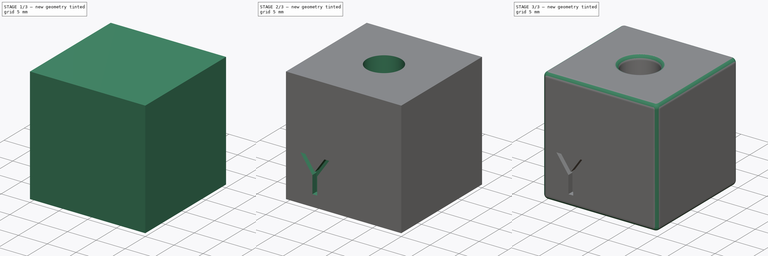
[diagram: build sequence overview — one tinted view per stage of 3, left to right]
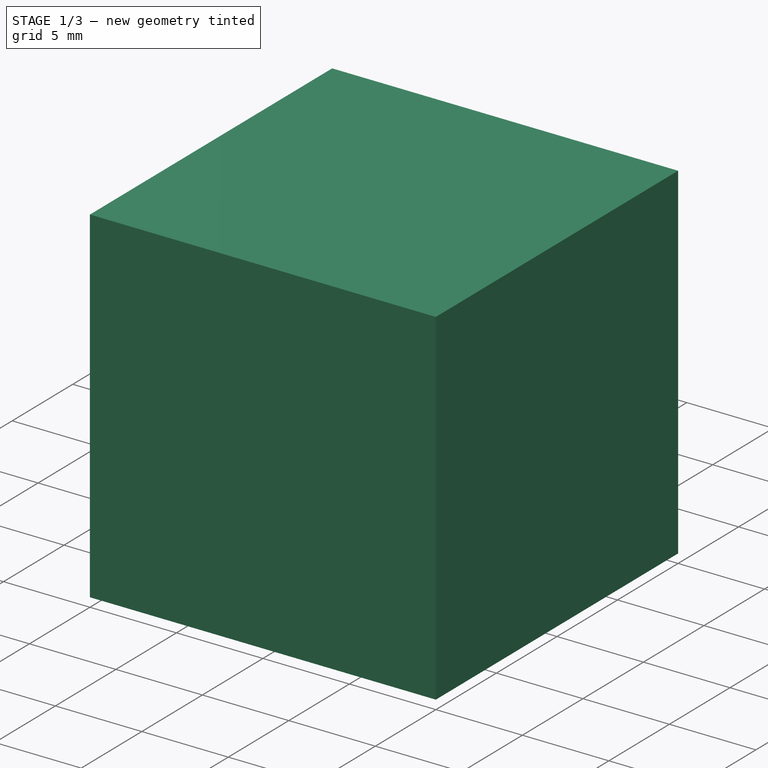
[diagram: stage 1 of 3 — iso view after this stage's code; geometry added in this stage tinted green]
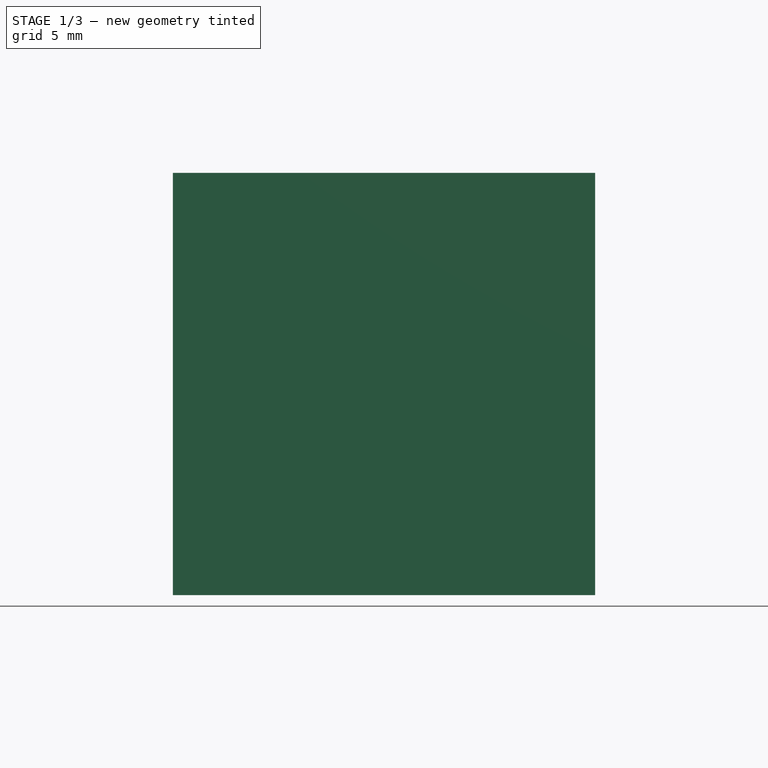
[diagram: stage 1 of 3 — front view after this stage's code; geometry added in this stage tinted green]
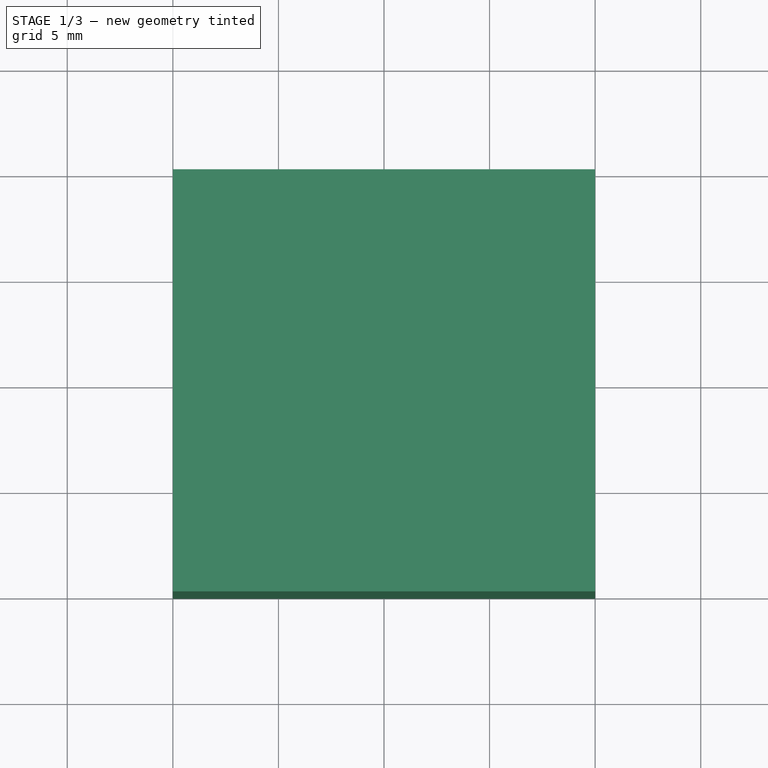
[diagram: stage 1 of 3 — top view after this stage's code; geometry added in this stage tinted green]
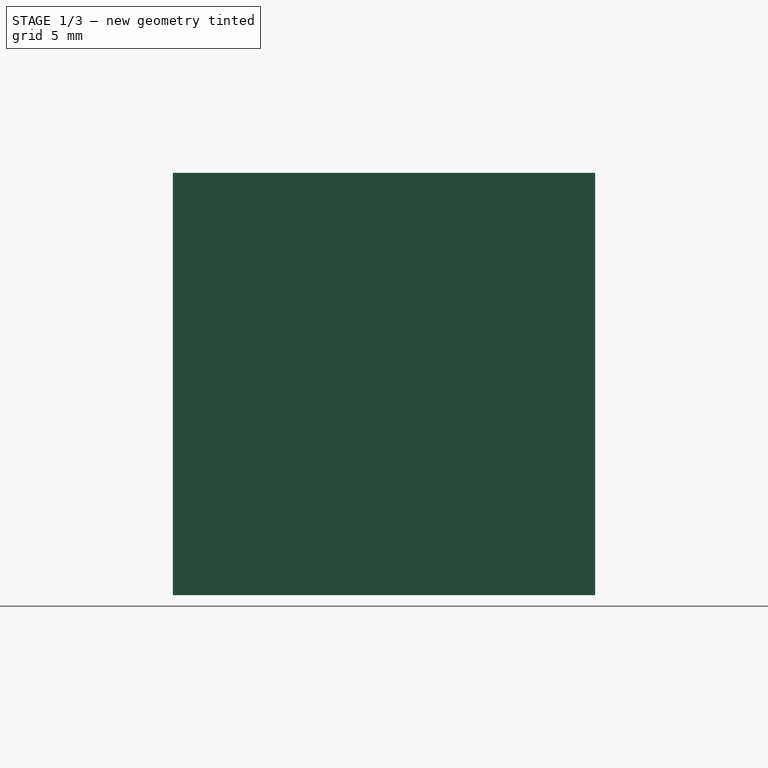
[diagram: stage 1 of 3 — right view after this stage's code; geometry added in this stage tinted green]
FCSTD DOCUMENT  (FreeCAD 0.21R33694 (Git))
Label: calibration_cube_V001
License: All rights reserved
LicenseURL: http://en.wikipedia.org/wiki/All_rights_reserved
objects: Sketcher::SketchObject×5, PartDesign::Pocket×2, PartDesign::Hole×2, PartDesign::Fillet×2, Spreadsheet::Sheet×1, PartDesign::Pad×1, PartDesign::Plane×1, PartDesign::Body×1
note: 21 computed .brp shape members not serialized (recipe doc carries the construction recipe); baked Part::Feature solids carry a one-line shape summary decoded from their .brp

FEATURE [Spreadsheet::Sheet] Spreadsheet  label="settings"
  cells = A1='Cube size; B1(cube_size)=20; A2='Top hole dia; B2(top_hole_dia)=6; A3='Bot hole dia; B3(bot_hole_dia)=10; A4='hole depth; B4(hole_D)=10; A5='Letter position; B5(letter_pos)=5; A6='Letter size; B6(letter_size)=5; A7='edge chamfer; B7(edge_chamfer)=0.8; A8='hole chamfer; B8(hole_chamfer)=0.8
FEATURE [Sketcher::SketchObject] Sketch
  FullyConstrained = true
  MapMode = 5
  Support = -> [XY_Plane]
  expr: Constraints[10] = <<settings>>.cube_size
  sketch-geometry (4):
    g0: LineSegment StartX=0 StartY=0 StartZ=0 EndX=20 EndY=0 EndZ=0
    g1: LineSegment StartX=20 StartY=0 StartZ=0 EndX=20 EndY=20 EndZ=0
    g2: LineSegment StartX=20 StartY=20 StartZ=0 EndX=0 EndY=20 EndZ=0
    g3: LineSegment StartX=0 StartY=20 StartZ=0 EndX=0 EndY=0 EndZ=0
  constraints (11):
    c: Coincident(g0,g1)
    c: Coincident(g1,g2)
    c: Coincident(g2,g3)
    c: Coincident(g3,g0)
    c: Horizontal(g0)
    c: Horizontal(g2)
    c: Vertical(g1)
    c: Vertical(g3)
    c: Coincident(g0,g-1)
    c: Equal(g1,g2)
    c: DistanceY(g3,g3) = 20
FEATURE [PartDesign::Pad] Pad  label="cube_body"
  Direction = (0,0,1)
  Length = 20
  Length2 = 10
  Profile = -> Sketch
  ReferenceAxis = -> Sketch [N_Axis]
  Type = 0
  expr: Length = <<settings>>.cube_size
FEATURE [Sketcher::SketchObject] Sketch002
  FullyConstrained = true
  MapMode = 5
  Placement = pos=(0,0,0) rot=(0.57735,0.57735,0.57735;2.0944rad)
  Support = -> [YZ_Plane]
  expr: Constraints[10] = <<settings>>.letter_pos
  expr: Constraints[20] = <<settings>>.letter_size
  expr: Constraints[21] = <<settings>>.letter_pos * 1.2
  expr: Constraints[41] = <<settings>>.letter_size / 6
  sketch-geometry (28):
    g0: LineSegment StartX=0 StartY=0 StartZ=0 EndX=5 EndY=0 EndZ=0
    g1: LineSegment StartX=5 StartY=0 StartZ=0 EndX=5 EndY=5 EndZ=0
    g2: LineSegment StartX=5 StartY=5 StartZ=0 EndX=0 EndY=5 EndZ=0
    g3: LineSegment StartX=0 StartY=5 StartZ=0 EndX=0 EndY=0 EndZ=0
    g4: LineSegment StartX=7.5 StartY=8 StartZ=0 EndX=2.5 EndY=8 EndZ=0
    g5: LineSegment StartX=2.5 StartY=8 StartZ=0 EndX=2.5 EndY=2 EndZ=0
    g6: LineSegment StartX=2.5 StartY=2 StartZ=0 EndX=7.5 EndY=2 EndZ=0
    g7: LineSegment StartX=7.5 StartY=2 StartZ=0 EndX=7.5 EndY=8 EndZ=0
    g8: LineSegment StartX=7.5 StartY=8 StartZ=0 EndX=3.33333 EndY=2 EndZ=0
    g9: LineSegment StartX=2.5 StartY=8 StartZ=0 EndX=6.66667 EndY=2 EndZ=0
    g10: LineSegment StartX=7.5 StartY=2 StartZ=0 EndX=3.33333 EndY=8 EndZ=0
    g11: LineSegment StartX=2.5 StartY=2 StartZ=0 EndX=6.66667 EndY=8 EndZ=0
    g12: LineSegment StartX=7.5 StartY=8 StartZ=0 EndX=6.66667 EndY=8 EndZ=0
    g13: LineSegment StartX=3.33333 StartY=8 StartZ=0 EndX=2.5 EndY=8 EndZ=0
    g14: LineSegment StartX=2.5 StartY=2 StartZ=0 EndX=3.33333 EndY=2 EndZ=0
    g15: LineSegment StartX=6.66667 StartY=2 StartZ=0 EndX=7.5 EndY=2 EndZ=0
    g16: GeomPoint X=5.41667 Y=5 Z=0
    g17: GeomPoint X=4.58333 Y=5 Z=0
    g18: GeomPoint X=5 Y=5.6 Z=0
    g19: GeomPoint X=5 Y=4.4 Z=0
    g20: LineSegment StartX=7.5 StartY=8 StartZ=0 EndX=5.41667 EndY=5 EndZ=0
    g21: LineSegment StartX=5.41667 StartY=5 StartZ=0 EndX=7.5 EndY=2 EndZ=0
    g22: LineSegment StartX=6.66667 StartY=2 StartZ=0 EndX=5 EndY=4.4 EndZ=0
    g23: LineSegment StartX=3.33333 StartY=2 StartZ=0 EndX=5 EndY=4.4 EndZ=0
    g24: LineSegment StartX=2.5 StartY=2 StartZ=0 EndX=4.58333 EndY=5 EndZ=0
    g25: LineSegment StartX=2.5 StartY=8 StartZ=0 EndX=4.58333 EndY=5 EndZ=0
    g26: LineSegment StartX=3.33333 StartY=8 StartZ=0 EndX=5 EndY=5.6 EndZ=0
    g27: LineSegment StartX=5 StartY=5.6 StartZ=0 EndX=6.66667 EndY=8 EndZ=0
  constraints (66):
    c: Coincident(g0,g1)
    c: Coincident(g1,g2)
    c: Coincident(g2,g3)
    c: Coincident(g3,g0)
    c: Horizontal(g0)
    c: Horizontal(g2)
    c: Vertical(g1)
    c: Vertical(g3)
    c: Coincident(g0,g-1)
    c: Equal(g2,g1)
    c: DistanceX(g0,g0) = 5
    c: Coincident(g4,g5)
    c: Coincident(g5,g6)
    c: Coincident(g6,g7)
    c: Coincident(g7,g4)
    c: Horizontal(g4)
    c: Horizontal(g6)
    c: Vertical(g5)
    c: Vertical(g7)
    c: Symmetric(g4,g6,g1)
    c: DistanceX(g6,g6) = 5
    c: DistanceY(g5,g5) = 6
    c: Coincident(g8,g4)
    c: PointOnObject(g8,g6)
    c: Coincident(g9,g4)
    c: PointOnObject(g9,g6)
    c: Coincident(g10,g6)
    c: PointOnObject(g10,g4)
    c: Coincident(g11,g5)
    c: PointOnObject(g11,g4)
    c: Coincident(g12,g4)
    c: Coincident(g12,g11)
    c: Coincident(g13,g10)
    c: Coincident(g13,g4)
    c: Coincident(g14,g5)
    c: Coincident(g14,g8)
    c: Coincident(g15,g9)
    c: Coincident(g15,g6)
    c: Equal(g12,g15)
    c: Equal(g15,g14)
    c: Equal(g14,g13)
    c: DistanceX(g12,g12) = 0.833333
    c: PointOnObject(g16,g10)
    c: PointOnObject(g16,g8)
    c: PointOnObject(g17,g11)
    c: PointOnObject(g18,g10)
    c: PointOnObject(g19,g9)
    c: PointOnObject(g19,g8)
    c: PointOnObject(g17,g9)
    c: PointOnObject(g18,g11)
    c: Coincident(g20,g12)
    c: Coincident(g20,g16)
    c: Coincident(g21,g20)
    c: Coincident(g21,g15)
    c: Coincident(g22,g15)
    c: Coincident(g22,g19)
    c: Coincident(g23,g14)
    c: Coincident(g23,g22)
    c: Coincident(g24,g14)
    c: Coincident(g24,g17)
    c: Coincident(g25,g13)
    c: Coincident(g25,g24)
    c: Coincident(g26,g13)
    c: Coincident(g26,g18)
    c: Coincident(g27,g18)
    c: Coincident(g27,g12)
FEATURE [PartDesign::Pocket] Pocket  label="X_char"
  BaseFeature = -> Pad
  Direction = (-1,2e-16,-3e-16)
  Length = 1
  Length2 = 5
  Profile = -> Sketch002
  ReferenceAxis = -> Sketch002 [N_Axis]
  Reversed = true
  Type = 0
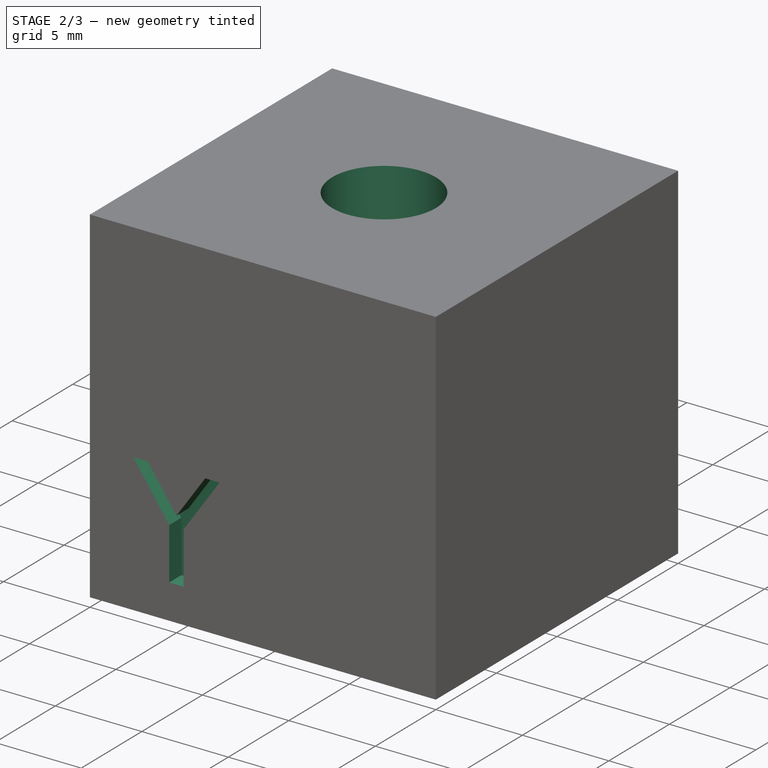
[diagram: stage 2 of 3 — iso view after this stage's code; geometry added in this stage tinted green]
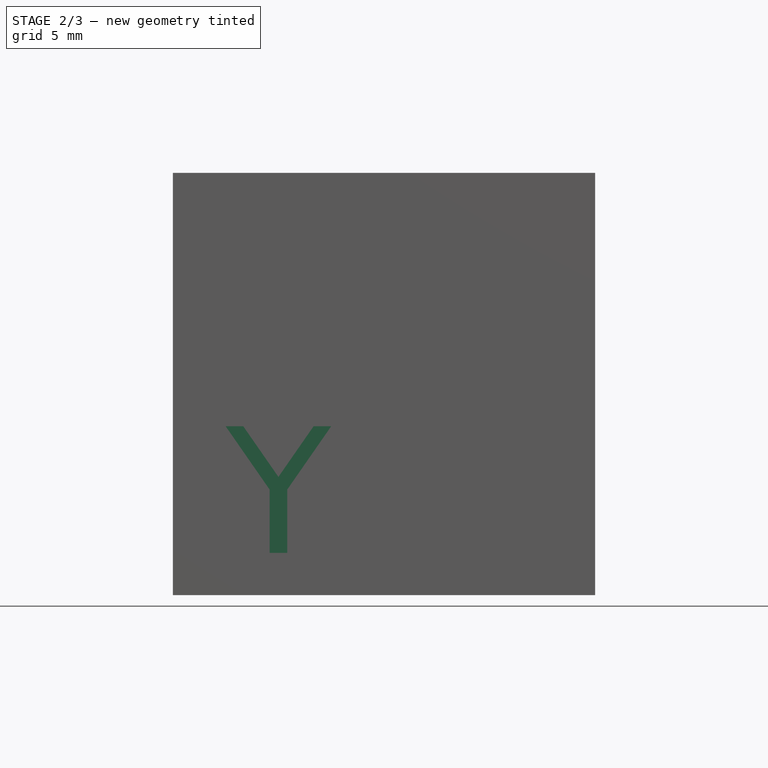
[diagram: stage 2 of 3 — front view after this stage's code; geometry added in this stage tinted green]
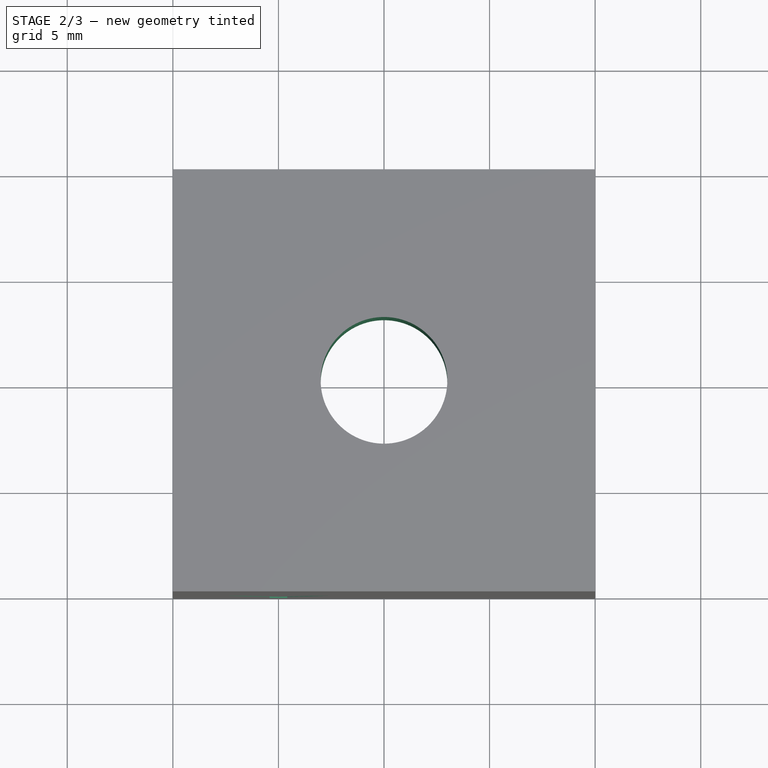
[diagram: stage 2 of 3 — top view after this stage's code; geometry added in this stage tinted green]
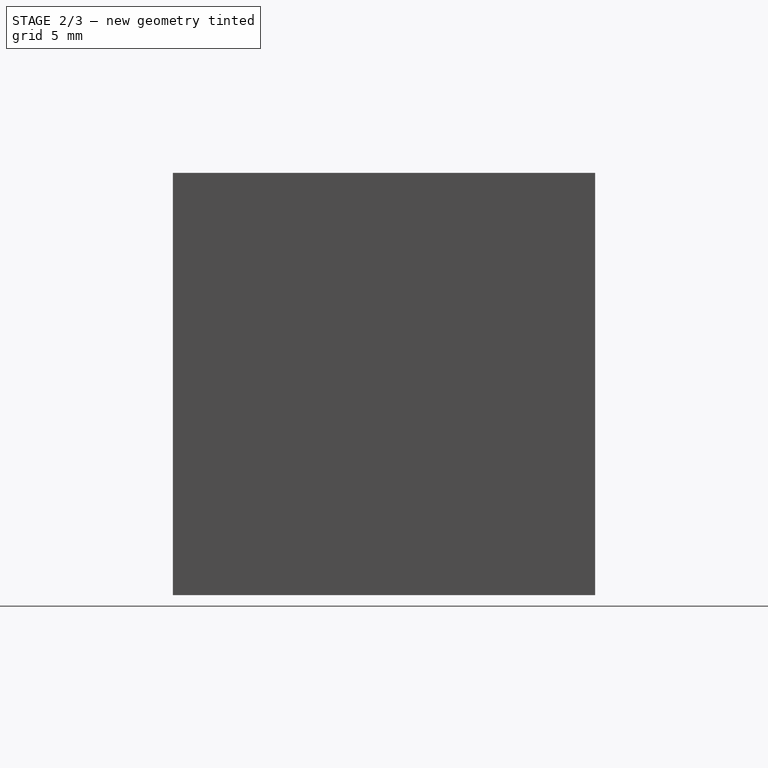
[diagram: stage 2 of 3 — right view after this stage's code; geometry added in this stage tinted green]
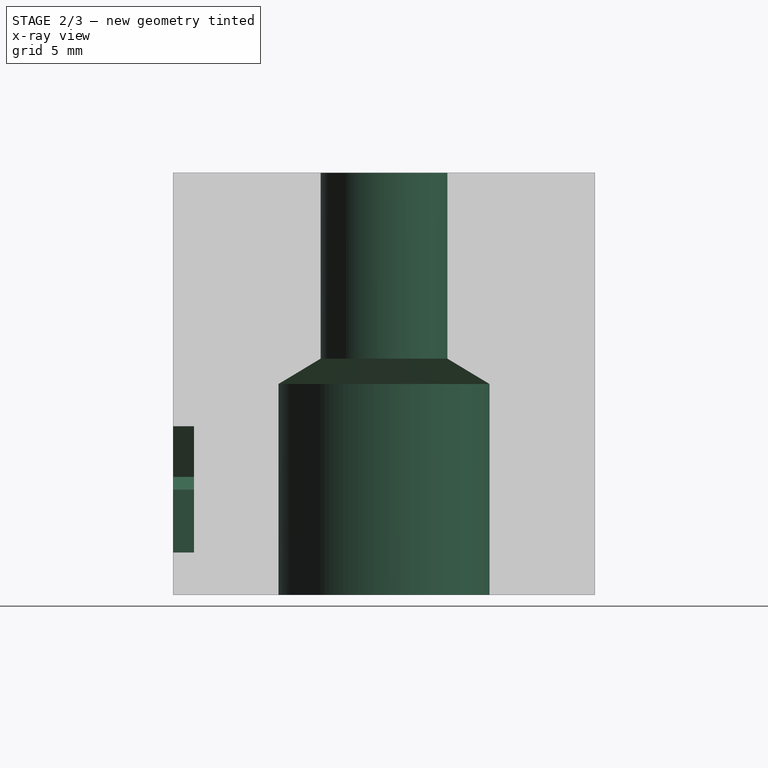
[diagram: stage 2 of 3 — x-ray composite at the right view; earlier geometry ghosted, this stage's added geometry solid]
FEATURE [Sketcher::SketchObject] Sketch003
  FullyConstrained = true
  MapMode = 5
  Placement = pos=(0,0,0) rot=(1,0,0;1.5708rad)
  Support = -> [XZ_Plane]
  expr: Constraints[18] = <<settings>>.letter_pos
  expr: Constraints[20] = <<settings>>.letter_size
  expr: Constraints[21] = <<settings>>.letter_size * 1.2
  expr: Constraints[41] = <<settings>>.letter_size / 6
  sketch-geometry (26):
    g0: LineSegment StartX=0 StartY=0 StartZ=0 EndX=5 EndY=0 EndZ=0
    g1: LineSegment StartX=5 StartY=0 StartZ=0 EndX=5 EndY=5 EndZ=0
    g2: LineSegment StartX=5 StartY=5 StartZ=0 EndX=0 EndY=5 EndZ=0
    g3: LineSegment StartX=0 StartY=5 StartZ=0 EndX=0 EndY=0 EndZ=0
    g4: LineSegment StartX=2.5 StartY=8 StartZ=0 EndX=7.5 EndY=8 EndZ=0
    g5: LineSegment StartX=7.5 StartY=8 StartZ=0 EndX=7.5 EndY=2 EndZ=0
    g6: LineSegment StartX=7.5 StartY=2 StartZ=0 EndX=2.5 EndY=2 EndZ=0
    g7: LineSegment StartX=2.5 StartY=2 StartZ=0 EndX=2.5 EndY=8 EndZ=0
    g8: LineSegment StartX=7.5 StartY=2 StartZ=0 EndX=3.33333 EndY=8 EndZ=0
    g9: LineSegment StartX=2.5 StartY=8 StartZ=0 EndX=6.66667 EndY=2 EndZ=0
    g10: LineSegment StartX=7.5 StartY=8 StartZ=0 EndX=3.33333 EndY=2 EndZ=0
    g11: LineSegment StartX=2.5 StartY=2 StartZ=0 EndX=6.66667 EndY=8 EndZ=0
    g12: LineSegment StartX=3.33333 StartY=2 StartZ=0 EndX=2.5 EndY=2 EndZ=0
    g13: LineSegment StartX=6.66667 StartY=2 StartZ=0 EndX=7.5 EndY=2 EndZ=0
    g14: LineSegment StartX=2.5 StartY=8 StartZ=0 EndX=3.33333 EndY=8 EndZ=0
    g15: LineSegment StartX=6.66667 StartY=8 StartZ=0 EndX=7.5 EndY=8 EndZ=0
    g16: GeomPoint X=4.58333 Y=5 Z=0
    g17: GeomPoint X=5.41667 Y=5 Z=0
    g18: GeomPoint X=5 Y=5.6 Z=0
    g19: LineSegment StartX=2.5 StartY=8 StartZ=0 EndX=4.58333 EndY=5 EndZ=0
    g20: LineSegment StartX=5 StartY=5.6 StartZ=0 EndX=3.33333 EndY=8 EndZ=0
    g21: LineSegment StartX=5 StartY=5.6 StartZ=0 EndX=6.66667 EndY=8 EndZ=0
    g22: LineSegment StartX=7.5 StartY=8 StartZ=0 EndX=5.41667 EndY=5 EndZ=0
    g23: LineSegment StartX=4.58333 StartY=5 StartZ=0 EndX=4.58333 EndY=2 EndZ=0
    g24: LineSegment StartX=5.41667 StartY=5 StartZ=0 EndX=5.41667 EndY=2 EndZ=0
    g25: LineSegment StartX=5.41667 StartY=2 StartZ=0 EndX=4.58333 EndY=2 EndZ=0
  constraints (64):
    c: Coincident(g0,g1)
    c: Coincident(g1,g2)
    c: Coincident(g2,g3)
    c: Coincident(g3,g0)
    c: Horizontal(g0)
    c: Horizontal(g2)
    c: Vertical(g1)
    c: Vertical(g3)
    c: Coincident(g0,g-1)
    c: Coincident(g4,g5)
    c: Coincident(g5,g6)
    c: Coincident(g6,g7)
    c: Coincident(g7,g4)
    c: Horizontal(g4)
    c: Horizontal(g6)
    c: Vertical(g5)
    c: Vertical(g7)
    c: Symmetric(g6,g4,g1)
    c: DistanceX(g0,g0) = 5
    c: Equal(g2,g3)
    c: DistanceX(g6,g6) = 5
    c: DistanceY(g7,g7) = 6
    c: Coincident(g8,g5)
    c: PointOnObject(g8,g4)
    c: Coincident(g9,g4)
    c: PointOnObject(g9,g6)
    c: Coincident(g10,g4)
    c: PointOnObject(g10,g6)
    c: Coincident(g11,g6)
    c: PointOnObject(g11,g4)
    c: Coincident(g12,g10)
    c: Coincident(g12,g6)
    c: Coincident(g13,g9)
    c: Coincident(g13,g5)
    c: Coincident(g14,g4)
    c: Coincident(g14,g8)
    c: Coincident(g15,g11)
    c: Coincident(g15,g4)
    c: Equal(g12,g13)
    c: Equal(g13,g14)
    c: Equal(g14,g15)
    c: DistanceX(g14,g14) = 0.833333
    c: PointOnObject(g16,g11)
    c: PointOnObject(g16,g9)
    c: PointOnObject(g17,g8)
    c: PointOnObject(g17,g10)
    c: PointOnObject(g18,g11)
    c: PointOnObject(g18,g8)
    c: Coincident(g19,g14)
    c: Coincident(g19,g16)
    c: Coincident(g20,g18)
    c: Coincident(g20,g14)
    c: Coincident(g21,g20)
    c: Coincident(g21,g15)
    c: Coincident(g22,g15)
    c: Coincident(g22,g17)
    c: Coincident(g23,g19)
    c: PointOnObject(g23,g6)
    c: Vertical(g23)
    c: Coincident(g24,g22)
    c: PointOnObject(g24,g6)
    c: Vertical(g24)
    c: Coincident(g25,g24)
    c: Coincident(g25,g23)
FEATURE [PartDesign::Pocket] Pocket001  label="y_char"
  BaseFeature = -> Pocket
  Direction = (0,1,2e-16)
  Length = 1
  Length2 = 5
  Profile = -> Sketch003
  ReferenceAxis = -> Sketch003 [N_Axis]
  Type = 0
FEATURE [Sketcher::SketchObject] Sketch004
  FullyConstrained = true
  MapMode = 5
  Support = -> [XY_Plane]
  expr: Constraints[10] = <<settings>>.cube_size / 2
  sketch-geometry (5):
    g0: LineSegment StartX=0 StartY=0 StartZ=0 EndX=10 EndY=0 EndZ=0
    g1: LineSegment StartX=10 StartY=0 StartZ=0 EndX=10 EndY=10 EndZ=0
    g2: LineSegment StartX=10 StartY=10 StartZ=0 EndX=0 EndY=10 EndZ=0
    g3: LineSegment StartX=0 StartY=10 StartZ=0 EndX=0 EndY=0 EndZ=0
    g4: Circle CenterX=10 CenterY=10 CenterZ=0 NormalX=0 NormalY=0 NormalZ=1 AngleXU=0 Radius=0.5
  constraints (13):
    c: Coincident(g0,g1)
    c: Coincident(g1,g2)
    c: Coincident(g2,g3)
    c: Coincident(g3,g0)
    c: Horizontal(g0)
    c: Horizontal(g2)
    c: Vertical(g1)
    c: Vertical(g3)
    c: Coincident(g0,g-1)
    c: Equal(g1,g2)
    c: DistanceY(g3,g3) = 10
    c: Coincident(g4,g1)
    c: Diameter(g4) = 1
FEATURE [PartDesign::Hole] Hole  label="bottom_hole"
  BaseFeature = -> Pocket001
  CustomThreadClearance = 0
  Depth = 10
  DepthType = 0
  Diameter = 10
  DrillForDepth = false
  DrillPoint = 1
  DrillPointAngle = 118
  HoleCutCountersinkAngle = 90
  HoleCutCustomValues = false
  HoleCutDepth = 0
  HoleCutDiameter = 6.1
  HoleCutType = 0
  ModelThread = false
  Profile = -> Sketch004
  Reversed = true
  Tapered = false
  TaperedAngle = 90
  ThreadClass = 0
  ThreadDepth = 10
  ThreadDepthType = 0
  ThreadDirection = 0
  ThreadFit = 0
  ThreadSize = 0
  ThreadType = 0
  Threaded = false
  UseCustomThreadClearance = false
  expr: Depth = <<settings>>.hole_D
  expr: Diameter = <<settings>>.bot_hole_dia
FEATURE [PartDesign::Plane] DatumPlane  label="top_plane"
  AttachmentOffset = pos=(0,0,20) rot=(0,0,1;0rad)
  Length = 60
  MapMode = 5
  Placement = pos=(0,0,20) rot=(0,0,1;0rad)
  ResizeMode = 0
  Support = -> [XY_Plane]
  Width = 60
  expr: .AttachmentOffset.Base.z = <<settings>>.cube_size
FEATURE [Sketcher::SketchObject] Sketch005
  FullyConstrained = true
  MapMode = 5
  Placement = pos=(0,0,20) rot=(0,0,1;0rad)
  Support = -> [DatumPlane]
  expr: Constraints[12] = <<settings>>.cube_size / 2
  sketch-geometry (5):
    g0: LineSegment StartX=0 StartY=0 StartZ=0 EndX=10 EndY=0 EndZ=0
    g1: LineSegment StartX=10 StartY=0 StartZ=0 EndX=10 EndY=10 EndZ=0
    g2: LineSegment StartX=10 StartY=10 StartZ=0 EndX=0 EndY=10 EndZ=0
    g3: LineSegment StartX=0 StartY=10 StartZ=0 EndX=0 EndY=0 EndZ=0
    g4: Circle CenterX=10 CenterY=10 CenterZ=0 NormalX=0 NormalY=0 NormalZ=1 AngleXU=0 Radius=0.5
  constraints (13):
    c: Coincident(g0,g1)
    c: Coincident(g1,g2)
    c: Coincident(g2,g3)
    c: Coincident(g3,g0)
    c: Horizontal(g0)
    c: Horizontal(g2)
    c: Vertical(g1)
    c: Vertical(g3)
    c: Coincident(g0,g-1)
    c: Coincident(g4,g1)
    c: Diameter(g4) = 1
    c: Equal(g2,g3)
    c: DistanceY(g3,g3) = 10
FEATURE [PartDesign::Hole] Hole001  label="top_hole"
  BaseFeature = -> Hole
  CustomThreadClearance = 0
  Depth = 10
  DepthType = 0
  Diameter = 6
  DrillForDepth = false
  DrillPoint = 1
  DrillPointAngle = 118
  HoleCutCountersinkAngle = 90
  HoleCutCustomValues = false
  HoleCutDepth = 0
  HoleCutDiameter = 6.1
  HoleCutType = 0
  ModelThread = false
  Profile = -> Sketch005
  Tapered = false
  TaperedAngle = 90
  ThreadClass = 0
  ThreadDepth = 10
  ThreadDepthType = 0
  ThreadDirection = 0
  ThreadFit = 0
  ThreadSize = 0
  ThreadType = 0
  Threaded = false
  UseCustomThreadClearance = false
  expr: Depth = <<settings>>.hole_D
  expr: Diameter = <<settings>>.top_hole_dia
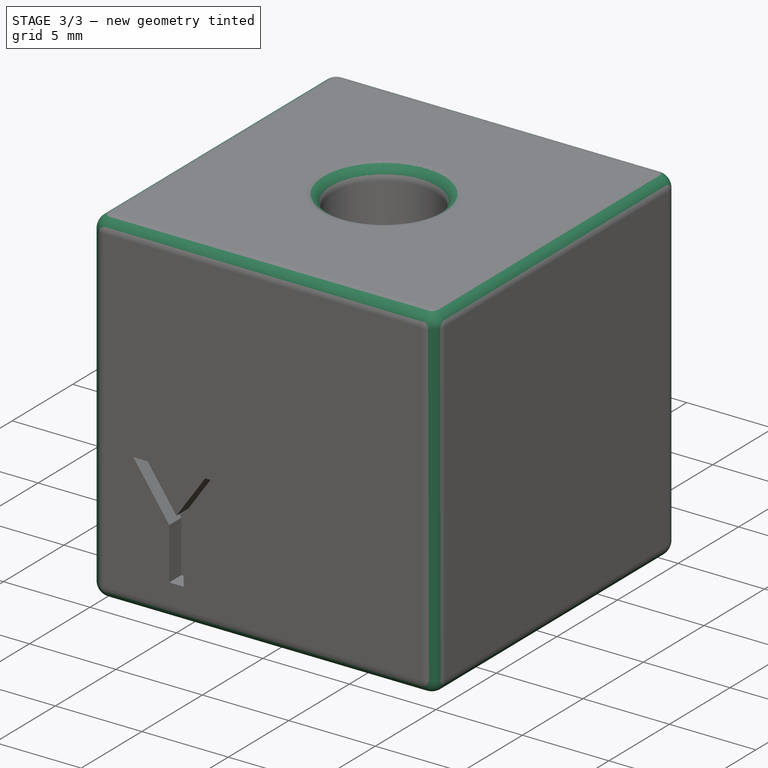
[diagram: stage 3 of 3 — iso view after this stage's code; geometry added in this stage tinted green]
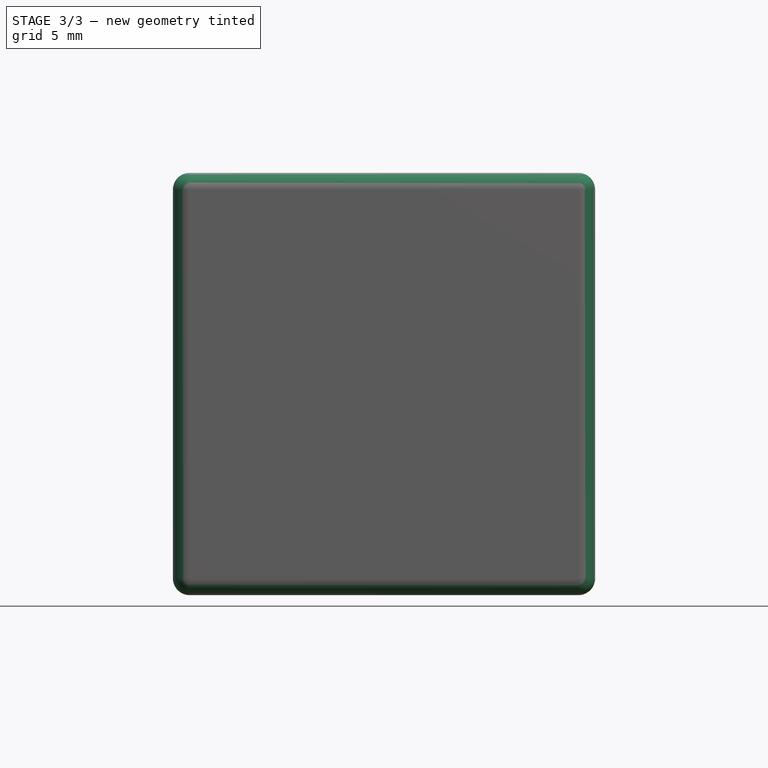
[diagram: stage 3 of 3 — front view after this stage's code; geometry added in this stage tinted green]
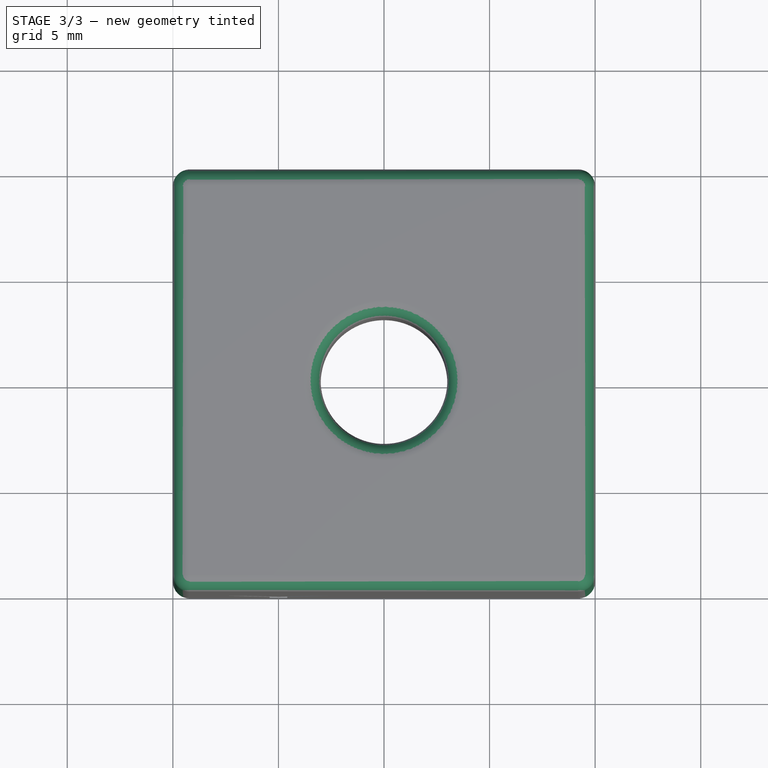
[diagram: stage 3 of 3 — top view after this stage's code; geometry added in this stage tinted green]
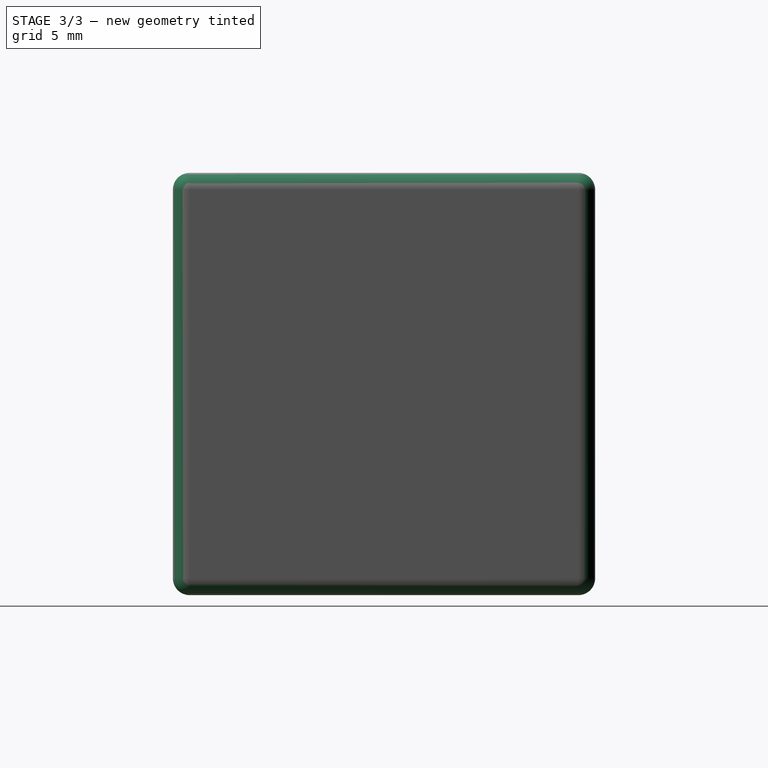
[diagram: stage 3 of 3 — right view after this stage's code; geometry added in this stage tinted green]
FEATURE [PartDesign::Fillet] Fillet  label="edge_fillet"
  Base = -> Hole001 [Edge1,Edge16,Edge14,Edge33,Edge15,Edge30,Edge35,Edge29,Edge4,Edge2,Edge32,Edge3]
  BaseFeature = -> Hole001
  Radius = 0.8
  SupportTransform = false
  UseAllEdges = false
  expr: Radius = <<settings>>.edge_chamfer
FEATURE [PartDesign::Fillet] Fillet001  label="hole_fillet"
  Base = -> Fillet [Edge72,Edge66]
  BaseFeature = -> Fillet
  Radius = 0.8
  SupportTransform = false
  UseAllEdges = false
  expr: Radius = <<settings>>.hole_chamfer
FEATURE [PartDesign::Body] Body
  Group = -> [Sketch,Pad,Sketch002,Pocket,Sketch003,Pocket001,Sketch004,Hole,DatumPlane,Sketch005,Hole001,Fillet,Fillet001]
  Origin = -> Origin
  Tip = -> Fillet001
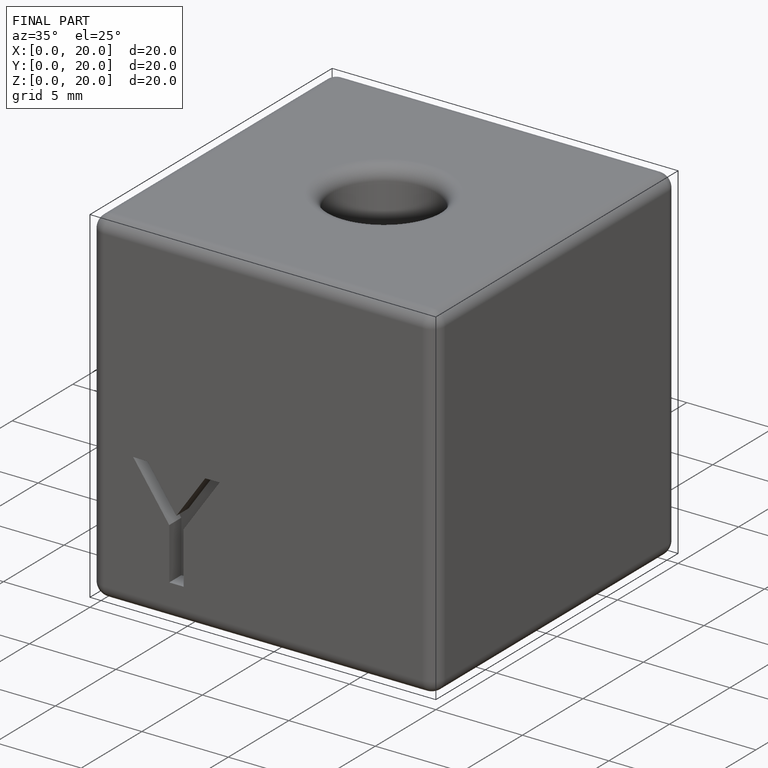
[diagram: finished part — iso view with bounding-box wireframe]
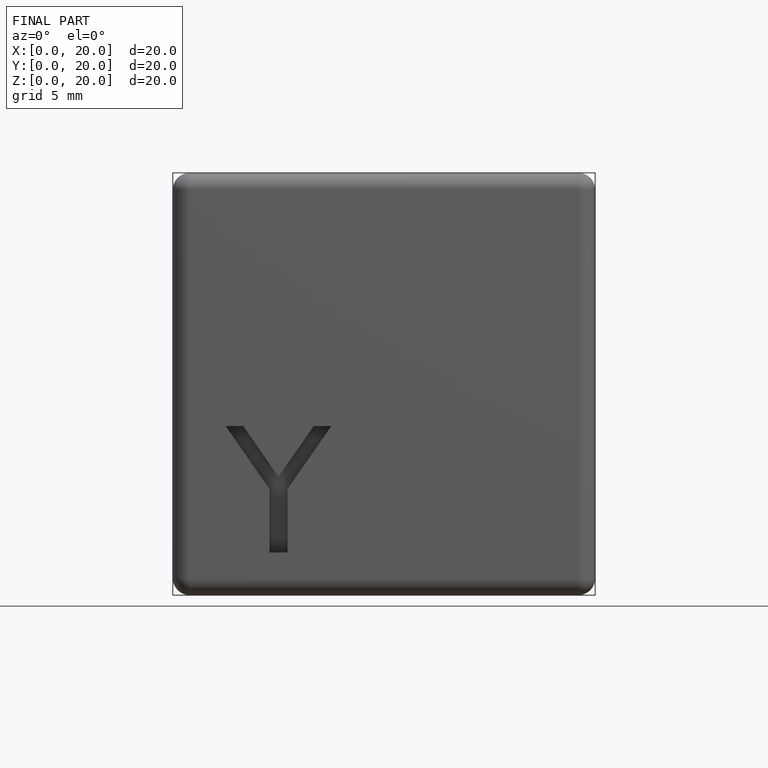
[diagram: finished part — front view with bounding-box wireframe]
